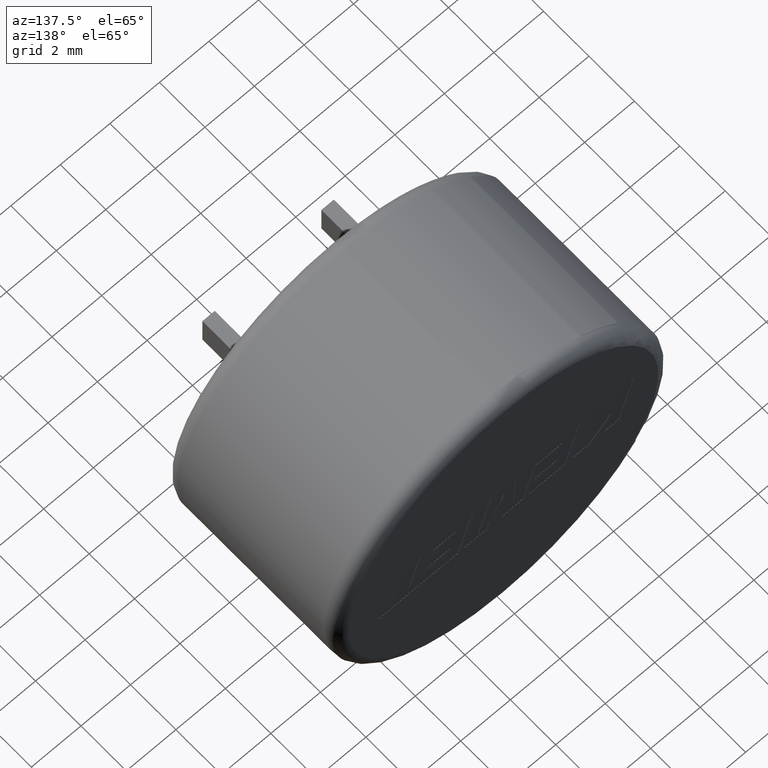
[diagram: clean part render]
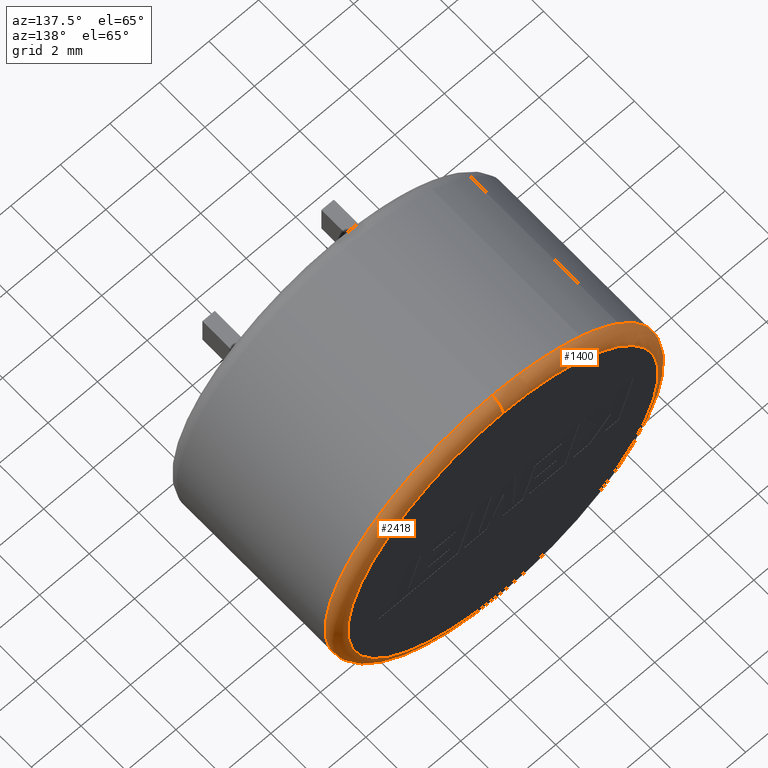
[diagram: same view with one multi-face feature highlighted, each face labeled with its STEP entity id]
A machine part, auxiliary view. The highlighted faces form ONE feature: a constant-radius fillet chain: 2 tangent blend faces with common blend radius 0.4838 mm. The faces share edges in the B-rep.
Their STEP definitions:
[1] entity #1400 (Torus):
#35 = FACE_OUTER_BOUND ( 'NONE', #1511, .T. ) ;
#74 = CARTESIAN_POINT ( 'NONE',  ( -3.573849647182955700, 7.016250000000000300, 5.726263939020822300 ) ) ;
#87 = CARTESIAN_POINT ( 'NONE',  ( 0.0000000000000000000, 7.016250000000000300, 0.0000000000000000000 ) ) ;
#116 = AXIS2_PLACEMENT_3D ( 'NONE', #2504, #1060, #810 ) ;
#141 = CARTESIAN_POINT ( 'NONE',  ( 8.266365894244634300E-016, 7.016250000000000300, 6.750000000000000000 ) ) ;
#145 = DIRECTION ( 'NONE',  ( 0.0000000000000000000, 0.0000000000000000000, 1.000000000000000000 ) ) ;
#214 = DIRECTION ( 'NONE',  ( -0.0000000000000000000, -1.000000000000000000, -0.0000000000000000000 ) ) ;
#275 = CARTESIAN_POINT ( 'NONE',  ( -5.090071194306335500, 7.016250000000000300, 4.433246579753136600 ) ) ;
#286 = CIRCLE ( 'NONE', #2101, 6.750000000000000000 ) ;
#409 = VERTEX_POINT ( 'NONE', #2308 ) ;
#443 = VERTEX_POINT ( 'NONE', #2316 ) ;
#462 = CIRCLE ( 'NONE', #1524, 6.266250000000000300 ) ;
#501 = EDGE_CURVE ( 'NONE', #2120, #575, #286, .T. ) ;
#512 = DIRECTION ( 'NONE',  ( 0.0000000000000000000, 1.000000000000000000, 0.0000000000000000000 ) ) ;
#575 = VERTEX_POINT ( 'NONE', #275 ) ;
#685 = ORIENTED_EDGE ( 'NONE', *, *, #501, .F. ) ;
#747 = CARTESIAN_POINT ( 'NONE',  ( 0.0000000000000000000, 7.016250000000000300, 6.266250000000000300 ) ) ;
#796 = ORIENTED_EDGE ( 'NONE', *, *, #2479, .F. ) ;
#809 = ORIENTED_EDGE ( 'NONE', *, *, #2131, .F. ) ;
#810 = DIRECTION ( 'NONE',  ( 0.0000000000000000000, 0.0000000000000000000, 1.000000000000000000 ) ) ;
#817 = ORIENTED_EDGE ( 'NONE', *, *, #1410, .F. ) ;
#928 = AXIS2_PLACEMENT_3D ( 'NONE', #747, #975, #145 ) ;
#975 = DIRECTION ( 'NONE',  ( -1.000000000000000000, 0.0000000000000000000, 0.0000000000000000000 ) ) ;
#992 = CIRCLE ( 'NONE', #928, 0.4837499999999997900 ) ;
#1021 = ORIENTED_EDGE ( 'NONE', *, *, #1636, .T. ) ;
#1060 = DIRECTION ( 'NONE',  ( -0.0000000000000000000, -1.000000000000000000, -0.0000000000000000000 ) ) ;
#1131 = DIRECTION ( 'NONE',  ( 0.0000000000000000000, 1.000000000000000000, 0.0000000000000000000 ) ) ;
#1292 = DIRECTION ( 'NONE',  ( 1.224646799147353700E-016, 0.0000000000000000000, -1.000000000000000000 ) ) ;
#1337 = CARTESIAN_POINT ( 'NONE',  ( 0.0000000000000000000, 7.016250000000000300, 0.0000000000000000000 ) ) ;
#1400 = ADVANCED_FACE ( 'NONE', ( #35 ), #2271, .T. ) ;
#1410 = EDGE_CURVE ( 'NONE', #1586, #2120, #1865, .T. ) ;
#1433 = CIRCLE ( 'NONE', #1751, 0.4837499999999997900 ) ;
#1511 = EDGE_LOOP ( 'NONE', ( #796, #2141, #685, #817, #1021, #809 ) ) ;
#1524 = AXIS2_PLACEMENT_3D ( 'NONE', #2446, #512, #1984 ) ;
#1586 = VERTEX_POINT ( 'NONE', #141 ) ;
#1636 = EDGE_CURVE ( 'NONE', #1586, #409, #992, .T. ) ;
#1716 = CARTESIAN_POINT ( 'NONE',  ( 7.673943005157101700E-016, 7.016250000000000300, -6.266250000000000300 ) ) ;
#1751 = AXIS2_PLACEMENT_3D ( 'NONE', #1716, #2134, #1292 ) ;
#1762 = DIRECTION ( 'NONE',  ( 0.0000000000000000000, 0.0000000000000000000, 1.000000000000000000 ) ) ;
#1783 = AXIS2_PLACEMENT_3D ( 'NONE', #1337, #2606, #1762 ) ;
#1814 = EDGE_CURVE ( 'NONE', #575, #1872, #2486, .T. ) ;
#1821 = AXIS2_PLACEMENT_3D ( 'NONE', #87, #1131, #1989 ) ;
#1856 = CARTESIAN_POINT ( 'NONE',  ( 0.0000000000000000000, 7.016250000000000300, -6.750000000000000000 ) ) ;
#1865 = CIRCLE ( 'NONE', #1783, 6.750000000000000000 ) ;
#1872 = VERTEX_POINT ( 'NONE', #1856 ) ;
#1984 = DIRECTION ( 'NONE',  ( 0.0000000000000000000, 0.0000000000000000000, 1.000000000000000000 ) ) ;
#1989 = DIRECTION ( 'NONE',  ( 0.0000000000000000000, 0.0000000000000000000, 1.000000000000000000 ) ) ;
#2101 = AXIS2_PLACEMENT_3D ( 'NONE', #2350, #214, #2568 ) ;
#2120 = VERTEX_POINT ( 'NONE', #74 ) ;
#2131 = EDGE_CURVE ( 'NONE', #443, #409, #462, .T. ) ;
#2134 = DIRECTION ( 'NONE',  ( 1.000000000000000000, -0.0000000000000000000, 1.224646799147353200E-016 ) ) ;
#2141 = ORIENTED_EDGE ( 'NONE', *, *, #1814, .F. ) ;
#2271 = TOROIDAL_SURFACE ( 'NONE', #1821, 6.266250000000000300, 0.4837500000000000100 ) ;
#2308 = CARTESIAN_POINT ( 'NONE',  ( 0.0000000000000000000, 7.500000000000000000, 6.266250000000000300 ) ) ;
#2316 = CARTESIAN_POINT ( 'NONE',  ( 7.970154449700868000E-016, 7.500000000000000000, -6.266250000000000300 ) ) ;
#2350 = CARTESIAN_POINT ( 'NONE',  ( 0.0000000000000000000, 7.016250000000000300, 0.0000000000000000000 ) ) ;
#2446 = CARTESIAN_POINT ( 'NONE',  ( 0.0000000000000000000, 7.500000000000000000, 0.0000000000000000000 ) ) ;
#2479 = EDGE_CURVE ( 'NONE', #1872, #443, #1433, .T. ) ;
#2486 = CIRCLE ( 'NONE', #116, 6.750000000000000000 ) ;
#2504 = CARTESIAN_POINT ( 'NONE',  ( 0.0000000000000000000, 7.016250000000000300, 0.0000000000000000000 ) ) ;
#2568 = DIRECTION ( 'NONE',  ( 0.0000000000000000000, 0.0000000000000000000, 1.000000000000000000 ) ) ;
#2606 = DIRECTION ( 'NONE',  ( -0.0000000000000000000, -1.000000000000000000, -0.0000000000000000000 ) ) ;
[2] entity #2418 (Torus):
#84 = ORIENTED_EDGE ( 'NONE', *, *, #2479, .T. ) ;
#134 = DIRECTION ( 'NONE',  ( 0.0000000000000000000, 1.000000000000000000, 0.0000000000000000000 ) ) ;
#141 = CARTESIAN_POINT ( 'NONE',  ( 8.266365894244634300E-016, 7.016250000000000300, 6.750000000000000000 ) ) ;
#145 = DIRECTION ( 'NONE',  ( 0.0000000000000000000, 0.0000000000000000000, 1.000000000000000000 ) ) ;
#225 = DIRECTION ( 'NONE',  ( 0.0000000000000000000, 0.0000000000000000000, 1.000000000000000000 ) ) ;
#409 = VERTEX_POINT ( 'NONE', #2308 ) ;
#443 = VERTEX_POINT ( 'NONE', #2316 ) ;
#747 = CARTESIAN_POINT ( 'NONE',  ( 0.0000000000000000000, 7.016250000000000300, 6.266250000000000300 ) ) ;
#878 = FACE_OUTER_BOUND ( 'NONE', #2111, .T. ) ;
#898 = CIRCLE ( 'NONE', #1630, 6.750000000000000000 ) ;
#928 = AXIS2_PLACEMENT_3D ( 'NONE', #747, #975, #145 ) ;
#975 = DIRECTION ( 'NONE',  ( -1.000000000000000000, 0.0000000000000000000, 0.0000000000000000000 ) ) ;
#992 = CIRCLE ( 'NONE', #928, 0.4837499999999997900 ) ;
#1292 = DIRECTION ( 'NONE',  ( 1.224646799147353700E-016, 0.0000000000000000000, -1.000000000000000000 ) ) ;
#1312 = CIRCLE ( 'NONE', #2685, 6.266250000000000300 ) ;
#1380 = AXIS2_PLACEMENT_3D ( 'NONE', #1896, #1499, #225 ) ;
#1396 = CARTESIAN_POINT ( 'NONE',  ( 0.0000000000000000000, 7.500000000000000000, 0.0000000000000000000 ) ) ;
#1433 = CIRCLE ( 'NONE', #1751, 0.4837499999999997900 ) ;
#1499 = DIRECTION ( 'NONE',  ( 0.0000000000000000000, 1.000000000000000000, 0.0000000000000000000 ) ) ;
#1518 = ORIENTED_EDGE ( 'NONE', *, *, #1636, .F. ) ;
#1586 = VERTEX_POINT ( 'NONE', #141 ) ;
#1630 = AXIS2_PLACEMENT_3D ( 'NONE', #1946, #1752, #2613 ) ;
#1636 = EDGE_CURVE ( 'NONE', #1586, #409, #992, .T. ) ;
#1639 = EDGE_CURVE ( 'NONE', #409, #443, #1312, .T. ) ;
#1716 = CARTESIAN_POINT ( 'NONE',  ( 7.673943005157101700E-016, 7.016250000000000300, -6.266250000000000300 ) ) ;
#1751 = AXIS2_PLACEMENT_3D ( 'NONE', #1716, #2134, #1292 ) ;
#1752 = DIRECTION ( 'NONE',  ( -0.0000000000000000000, -1.000000000000000000, -0.0000000000000000000 ) ) ;
#1856 = CARTESIAN_POINT ( 'NONE',  ( 0.0000000000000000000, 7.016250000000000300, -6.750000000000000000 ) ) ;
#1864 = EDGE_CURVE ( 'NONE', #1872, #1586, #898, .T. ) ;
#1872 = VERTEX_POINT ( 'NONE', #1856 ) ;
#1896 = CARTESIAN_POINT ( 'NONE',  ( 0.0000000000000000000, 7.016250000000000300, 0.0000000000000000000 ) ) ;
#1939 = ORIENTED_EDGE ( 'NONE', *, *, #1639, .F. ) ;
#1946 = CARTESIAN_POINT ( 'NONE',  ( 0.0000000000000000000, 7.016250000000000300, 0.0000000000000000000 ) ) ;
#2111 = EDGE_LOOP ( 'NONE', ( #2747, #84, #1939, #1518 ) ) ;
#2122 = TOROIDAL_SURFACE ( 'NONE', #1380, 6.266250000000000300, 0.4837500000000000100 ) ;
#2134 = DIRECTION ( 'NONE',  ( 1.000000000000000000, -0.0000000000000000000, 1.224646799147353200E-016 ) ) ;
#2227 = DIRECTION ( 'NONE',  ( 0.0000000000000000000, 0.0000000000000000000, 1.000000000000000000 ) ) ;
#2308 = CARTESIAN_POINT ( 'NONE',  ( 0.0000000000000000000, 7.500000000000000000, 6.266250000000000300 ) ) ;
#2316 = CARTESIAN_POINT ( 'NONE',  ( 7.970154449700868000E-016, 7.500000000000000000, -6.266250000000000300 ) ) ;
#2418 = ADVANCED_FACE ( 'NONE', ( #878 ), #2122, .T. ) ;
#2479 = EDGE_CURVE ( 'NONE', #1872, #443, #1433, .T. ) ;
#2613 = DIRECTION ( 'NONE',  ( 0.0000000000000000000, 0.0000000000000000000, 1.000000000000000000 ) ) ;
#2685 = AXIS2_PLACEMENT_3D ( 'NONE', #1396, #134, #2227 ) ;
#2747 = ORIENTED_EDGE ( 'NONE', *, *, #1864, .F. ) ;